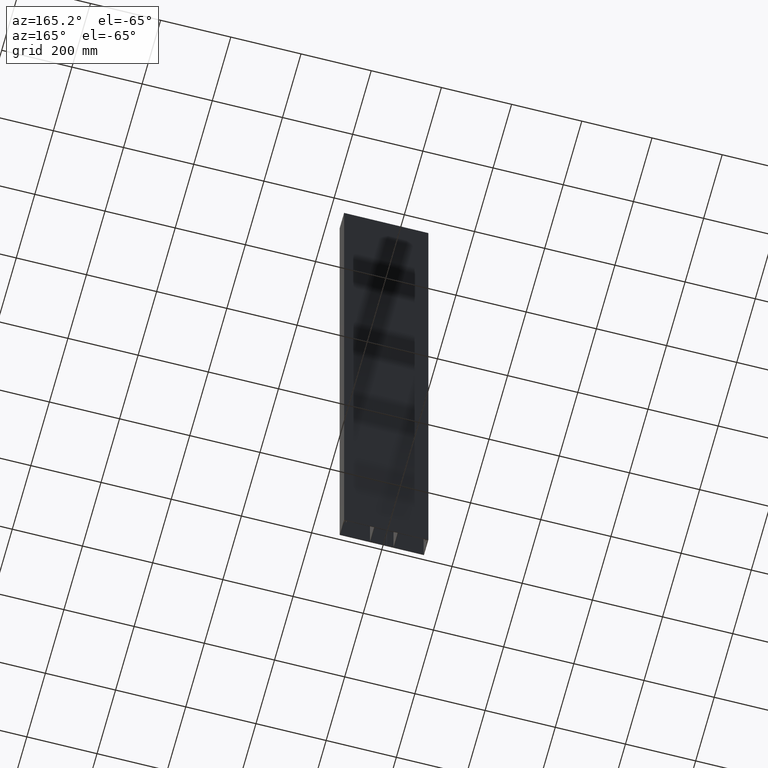
[diagram: clean part render]
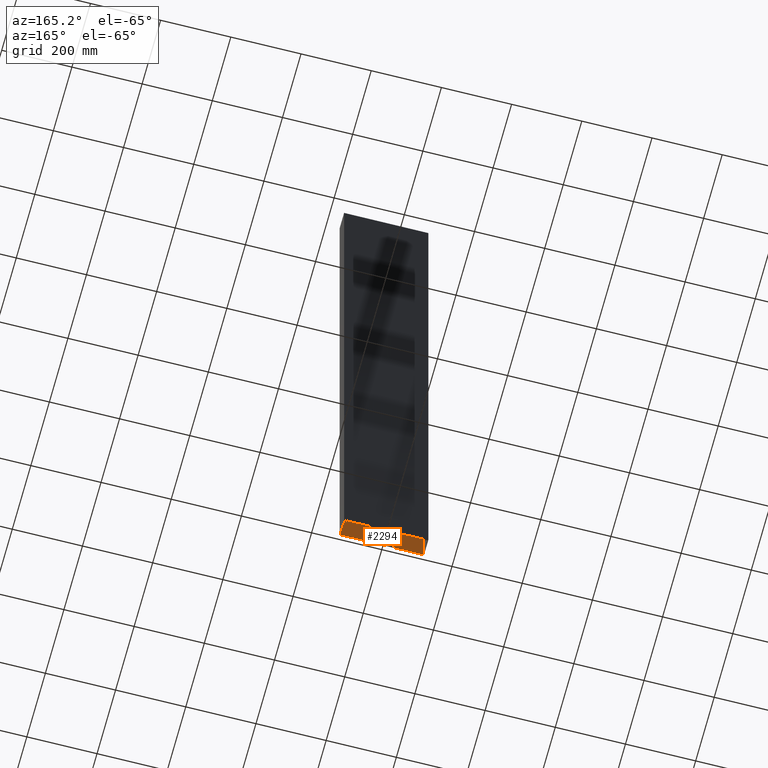
[diagram: same view with one face highlighted and labeled with its STEP entity id]
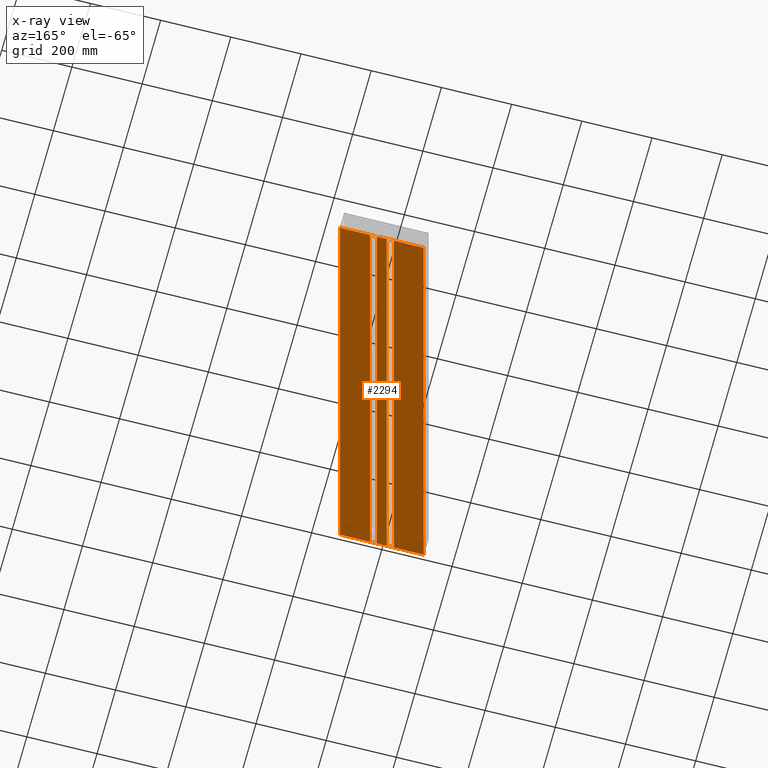
[diagram: x-ray of the same camera — body ghosted, the highlighted face saturated]
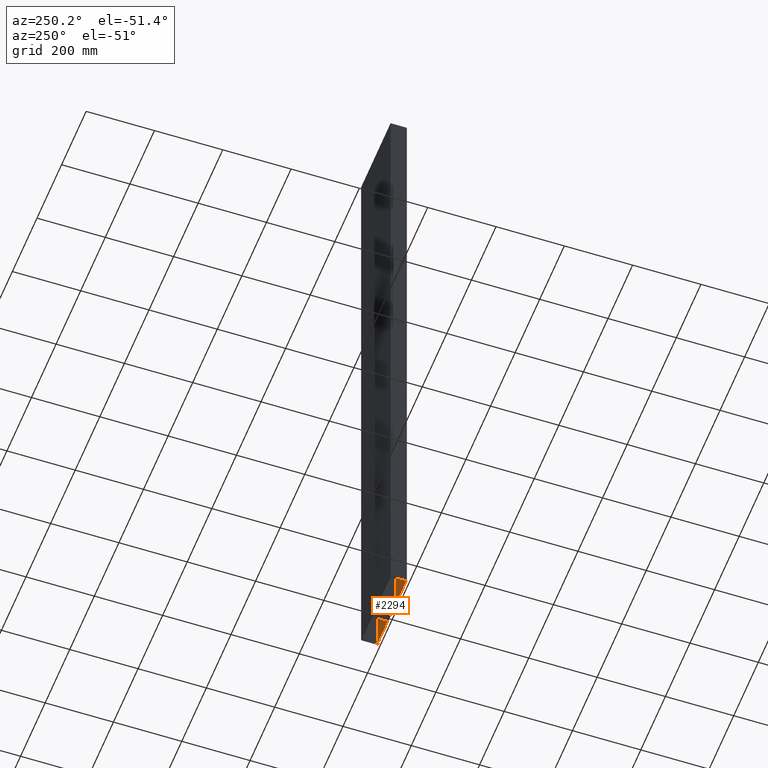
[diagram: same view with one face highlighted and labeled with its STEP entity id]
A machine part, auxiliary view. The second image highlights one B-rep face of the part: STEP entity #2294.
The next image is the same camera in x-ray: the body ghosted, the highlighted face saturated — about 0% of this face is hidden behind the body in this view.
A second angle (auxiliary view) of the same face is appended — the face is thin or edge-on in the first view.
In plain terms, the highlighted planar face has unit normal (0, 1, 0).
Its self-contained STEP definition (entity closure, byte-faithful):
#1439=DIRECTION('',(-1.E0,0.E0,0.E0));
#1440=VECTOR('',#1439,2.38E2);
#1441=CARTESIAN_POINT('',(1.19E2,1.E0,0.E0));
#1442=LINE('',#1441,#1440);
#1515=DIRECTION('',(0.E0,0.E0,-1.E0));
#1516=VECTOR('',#1515,2.E3);
#1517=CARTESIAN_POINT('',(-1.19E2,1.E0,0.E0));
#1518=LINE('',#1517,#1516);
#1591=DIRECTION('',(0.E0,0.E0,-1.E0));
#1592=VECTOR('',#1591,2.E3);
#1593=CARTESIAN_POINT('',(1.19E2,1.E0,0.E0));
#1594=LINE('',#1593,#1592);
#1595=DIRECTION('',(0.E0,0.E0,1.E0));
#1596=VECTOR('',#1595,1.996E3);
#1597=CARTESIAN_POINT('',(3.39765E1,1.E0,-1.998E3));
#1598=LINE('',#1597,#1596);
#1599=DIRECTION('',(1.E0,0.E0,0.E0));
#1600=VECTOR('',#1599,2.E1);
#1601=CARTESIAN_POINT('',(1.39765E1,1.E0,-1.998E3));
#1602=LINE('',#1601,#1600);
#1603=DIRECTION('',(0.E0,0.E0,1.E0));
#1604=VECTOR('',#1603,1.996E3);
#1605=CARTESIAN_POINT('',(1.39765E1,1.E0,-1.998E3));
#1606=LINE('',#1605,#1604);
#1607=DIRECTION('',(1.E0,0.E0,0.E0));
#1608=VECTOR('',#1607,2.E1);
#1609=CARTESIAN_POINT('',(1.39765E1,1.E0,-2.E0));
#1610=LINE('',#1609,#1608);
#1611=DIRECTION('',(0.E0,0.E0,1.E0));
#1612=VECTOR('',#1611,1.996E3);
#1613=CARTESIAN_POINT('',(-1.39765E1,1.E0,-1.998E3));
#1614=LINE('',#1613,#1612);
#1615=DIRECTION('',(1.E0,0.E0,0.E0));
#1616=VECTOR('',#1615,2.E1);
#1617=CARTESIAN_POINT('',(-3.39765E1,1.E0,-1.998E3));
#1618=LINE('',#1617,#1616);
#1619=DIRECTION('',(0.E0,0.E0,1.E0));
#1620=VECTOR('',#1619,1.996E3);
#1621=CARTESIAN_POINT('',(-3.39765E1,1.E0,-1.998E3));
#1622=LINE('',#1621,#1620);
#1623=DIRECTION('',(1.E0,0.E0,0.E0));
#1624=VECTOR('',#1623,2.E1);
#1625=CARTESIAN_POINT('',(-3.39765E1,1.E0,-2.E0));
#1626=LINE('',#1625,#1624);
#1703=DIRECTION('',(-1.E0,0.E0,0.E0));
#1704=VECTOR('',#1703,2.38E2);
#1705=CARTESIAN_POINT('',(1.19E2,1.E0,-2.E3));
#1706=LINE('',#1705,#1704);
#1838=CARTESIAN_POINT('',(1.19E2,1.E0,0.E0));
#1840=VERTEX_POINT('',#1838);
#1841=CARTESIAN_POINT('',(-1.19E2,1.E0,0.E0));
#1842=VERTEX_POINT('',#1841);
#1862=CARTESIAN_POINT('',(1.19E2,1.E0,-2.E3));
#1864=VERTEX_POINT('',#1862);
#1865=CARTESIAN_POINT('',(-1.19E2,1.E0,-2.E3));
#1866=VERTEX_POINT('',#1865);
#1915=CARTESIAN_POINT('',(3.39765E1,1.E0,-1.998E3));
#1916=CARTESIAN_POINT('',(3.39765E1,1.E0,-2.E0));
#1917=VERTEX_POINT('',#1915);
#1918=VERTEX_POINT('',#1916);
#1919=CARTESIAN_POINT('',(1.39765E1,1.E0,-1.998E3));
#1920=CARTESIAN_POINT('',(1.39765E1,1.E0,-2.E0));
#1921=VERTEX_POINT('',#1919);
#1922=VERTEX_POINT('',#1920);
#1939=CARTESIAN_POINT('',(-1.39765E1,1.E0,-1.998E3));
#1940=CARTESIAN_POINT('',(-1.39765E1,1.E0,-2.E0));
#1941=VERTEX_POINT('',#1939);
#1942=VERTEX_POINT('',#1940);
#1943=CARTESIAN_POINT('',(-3.39765E1,1.E0,-1.998E3));
#1944=CARTESIAN_POINT('',(-3.39765E1,1.E0,-2.E0));
#1945=VERTEX_POINT('',#1943);
#1946=VERTEX_POINT('',#1944);
#2262=CARTESIAN_POINT('',(1.19E2,1.E0,0.E0));
#2263=DIRECTION('',(0.E0,1.E0,0.E0));
#2264=DIRECTION('',(-1.E0,0.E0,0.E0));
#2265=AXIS2_PLACEMENT_3D('',#2262,#2263,#2264);
#2266=PLANE('',#2265);
#2267=ORIENTED_EDGE('',*,*,#1954,.T.);
#2268=ORIENTED_EDGE('',*,*,#2005,.T.);
#2270=ORIENTED_EDGE('',*,*,#2269,.F.);
#2271=ORIENTED_EDGE('',*,*,#2254,.F.);
#2272=EDGE_LOOP('',(#2267,#2268,#2270,#2271));
#2273=FACE_OUTER_BOUND('',#2272,.F.);
#2275=ORIENTED_EDGE('',*,*,#2274,.F.);
#2277=ORIENTED_EDGE('',*,*,#2276,.F.);
#2279=ORIENTED_EDGE('',*,*,#2278,.T.);
#2281=ORIENTED_EDGE('',*,*,#2280,.T.);
#2282=EDGE_LOOP('',(#2275,#2277,#2279,#2281));
#2283=FACE_BOUND('',#2282,.F.);
#2285=ORIENTED_EDGE('',*,*,#2284,.F.);
#2287=ORIENTED_EDGE('',*,*,#2286,.F.);
#2289=ORIENTED_EDGE('',*,*,#2288,.T.);
#2291=ORIENTED_EDGE('',*,*,#2290,.T.);
#2292=EDGE_LOOP('',(#2285,#2287,#2289,#2291));
#2293=FACE_BOUND('',#2292,.F.);
#1954=EDGE_CURVE('',#1840,#1842,#1442,.T.);
#2005=EDGE_CURVE('',#1842,#1866,#1518,.T.);
#2254=EDGE_CURVE('',#1840,#1864,#1594,.T.);
#2269=EDGE_CURVE('',#1864,#1866,#1706,.T.);
#2274=EDGE_CURVE('',#1917,#1918,#1598,.T.);
#2276=EDGE_CURVE('',#1921,#1917,#1602,.T.);
#2278=EDGE_CURVE('',#1921,#1922,#1606,.T.);
#2280=EDGE_CURVE('',#1922,#1918,#1610,.T.);
#2284=EDGE_CURVE('',#1941,#1942,#1614,.T.);
#2286=EDGE_CURVE('',#1945,#1941,#1618,.T.);
#2288=EDGE_CURVE('',#1945,#1946,#1622,.T.);
#2290=EDGE_CURVE('',#1946,#1942,#1626,.T.);
#2294=ADVANCED_FACE('',(#2273,#2283,#2293),#2266,.T.);